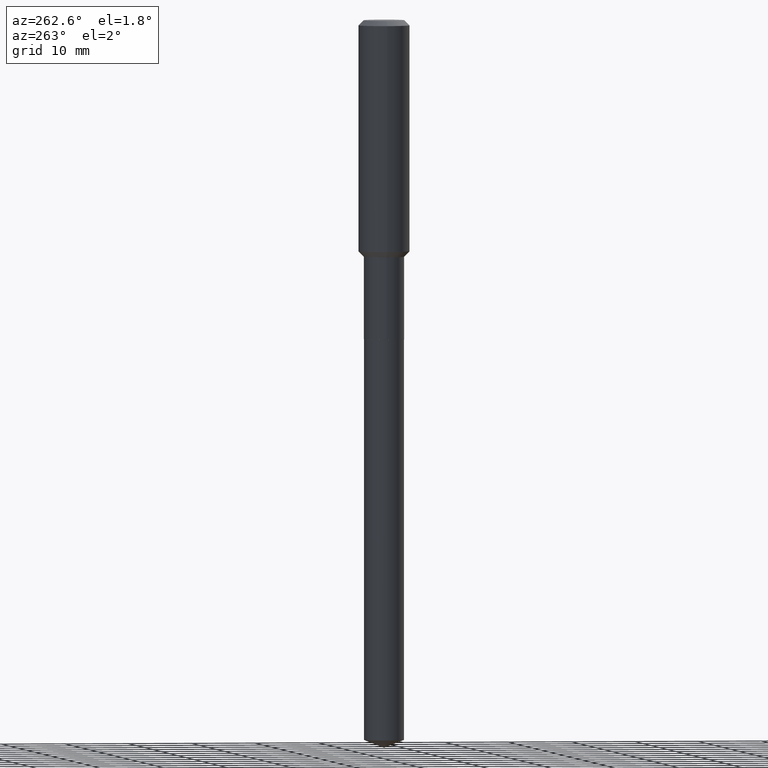
[diagram: clean part render]
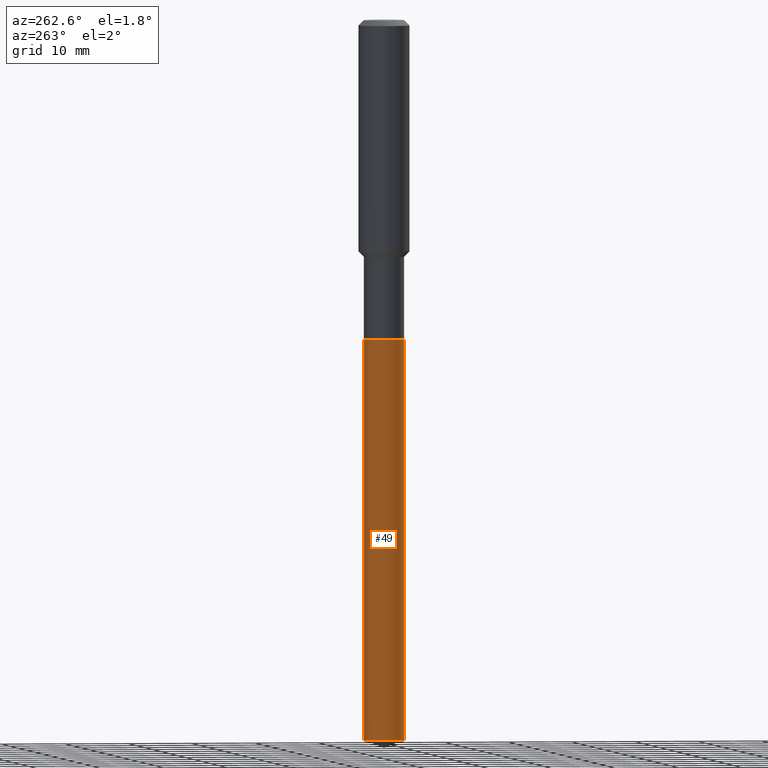
[diagram: same view with one face highlighted and labeled with its STEP entity id]
A machine part, auxiliary view. The second image highlights one B-rep face of the part: STEP entity #49.
In plain terms, the highlighted cylindrical surface (edge-blend (fillet) strip) has radius 3.1496 mm, axis along (-0, 0, 1).
Its self-contained STEP definition (entity closure, byte-faithful):
#17 = FACE_OUTER_BOUND ( 'NONE', #155, .T. ) ;
#30 = CARTESIAN_POINT ( 'NONE',  ( 1.085612817581790466E-28, -1.550017788218010837E-14, -4.439355101023747530 ) ) ;
#38 = VERTEX_POINT ( 'NONE', #380 ) ;
#49 = ADVANCED_FACE ( 'NONE', ( #17 ), #54, .T. ) ;
#51 = DIRECTION ( 'NONE',  ( -2.445397477310179660E-29, 3.491583485851871163E-15, 1.000000000000000000 ) ) ;
#54 = CYLINDRICAL_SURFACE ( 'NONE', #307, 0.1239999999999999991 ) ;
#81 = VERTEX_POINT ( 'NONE', #163 ) ;
#106 = ORIENTED_EDGE ( 'NONE', *, *, #427, .T. ) ;
#135 = DIRECTION ( 'NONE',  ( -2.445397477310179660E-29, 3.491583485851871163E-15, 1.000000000000000000 ) ) ;
#155 = EDGE_LOOP ( 'NONE', ( #196, #412, #106, #338 ) ) ;
#161 = AXIS2_PLACEMENT_3D ( 'NONE', #255, #135, #445 ) ;
#163 = CARTESIAN_POINT ( 'NONE',  ( -8.658873720330487110E-16, -0.1240000000000068825, -1.968499999999999472 ) ) ;
#171 = CARTESIAN_POINT ( 'NONE',  ( 4.813905344975440714E-29, -6.872981015512730918E-15, -1.968499999999999694 ) ) ;
#173 = DIRECTION ( 'NONE',  ( -6.982962677686265922E-15, -1.000000000000000000, 4.406206441393973340E-15 ) ) ;
#191 = VECTOR ( 'NONE', #310, 39.37007874015748143 ) ;
#196 = ORIENTED_EDGE ( 'NONE', *, *, #320, .F. ) ;
#221 = VERTEX_POINT ( 'NONE', #291 ) ;
#234 = EDGE_CURVE ( 'NONE', #221, #363, #287, .T. ) ;
#255 = CARTESIAN_POINT ( 'NONE',  ( 4.813905344975441835E-29, -6.872981015512731707E-15, -1.968500000000000139 ) ) ;
#259 = EDGE_CURVE ( 'NONE', #38, #81, #438, .T. ) ;
#267 = LINE ( 'NONE', #305, #191 ) ;
#287 = CIRCLE ( 'NONE', #413, 0.1239999999999999991 ) ;
#291 = CARTESIAN_POINT ( 'NONE',  ( 8.810729923426329884E-16, 0.1239999999999845254, -4.439355101023748418 ) ) ;
#299 = VECTOR ( 'NONE', #355, 39.37007874015748143 ) ;
#305 = CARTESIAN_POINT ( 'NONE',  ( 8.810729923425722461E-16, 0.1239999999999931157, -1.968500000000000361 ) ) ;
#307 = AXIS2_PLACEMENT_3D ( 'NONE', #171, #51, #470 ) ;
#310 = DIRECTION ( 'NONE',  ( -2.445397477310179380E-29, 3.491583485851871163E-15, 1.000000000000000000 ) ) ;
#320 = EDGE_CURVE ( 'NONE', #221, #38, #267, .T. ) ;
#338 = ORIENTED_EDGE ( 'NONE', *, *, #259, .F. ) ;
#355 = DIRECTION ( 'NONE',  ( -2.445397477310179380E-29, 3.491583485851871163E-15, 1.000000000000000000 ) ) ;
#363 = VERTEX_POINT ( 'NONE', #374 ) ;
#365 = LINE ( 'NONE', #444, #299 ) ;
#374 = CARTESIAN_POINT ( 'NONE',  ( -8.658873720329886590E-16, -0.1240000000000155284, -4.439355101023747530 ) ) ;
#380 = CARTESIAN_POINT ( 'NONE',  ( 8.810729923426331856E-16, 0.1239999999999931157, -1.968500000000000583 ) ) ;
#409 = DIRECTION ( 'NONE',  ( -2.445397477310179660E-29, 3.491583485851871163E-15, 1.000000000000000000 ) ) ;
#412 = ORIENTED_EDGE ( 'NONE', *, *, #234, .T. ) ;
#413 = AXIS2_PLACEMENT_3D ( 'NONE', #30, #409, #173 ) ;
#427 = EDGE_CURVE ( 'NONE', #363, #81, #365, .T. ) ;
#438 = CIRCLE ( 'NONE', #161, 0.1239999999999999991 ) ;
#444 = CARTESIAN_POINT ( 'NONE',  ( -8.658873720330487110E-16, -0.1240000000000068825, -1.968499999999999250 ) ) ;
#445 = DIRECTION ( 'NONE',  ( -6.982962677686265922E-15, -1.000000000000000000, 4.406206441393973340E-15 ) ) ;
#470 = DIRECTION ( 'NONE',  ( -6.982962677686265922E-15, -1.000000000000000000, 4.406206441393973340E-15 ) ) ;